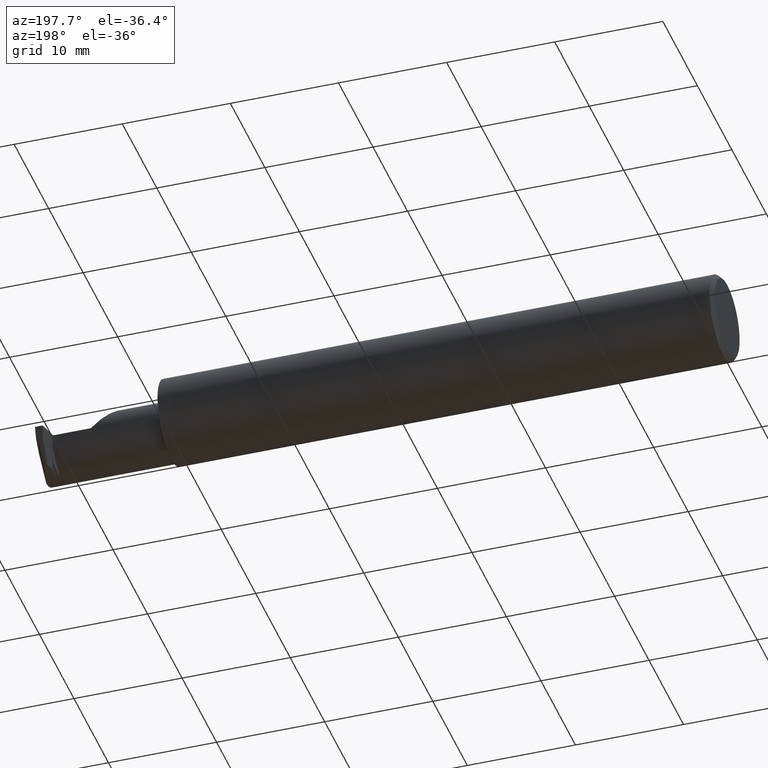
[diagram: clean part render]
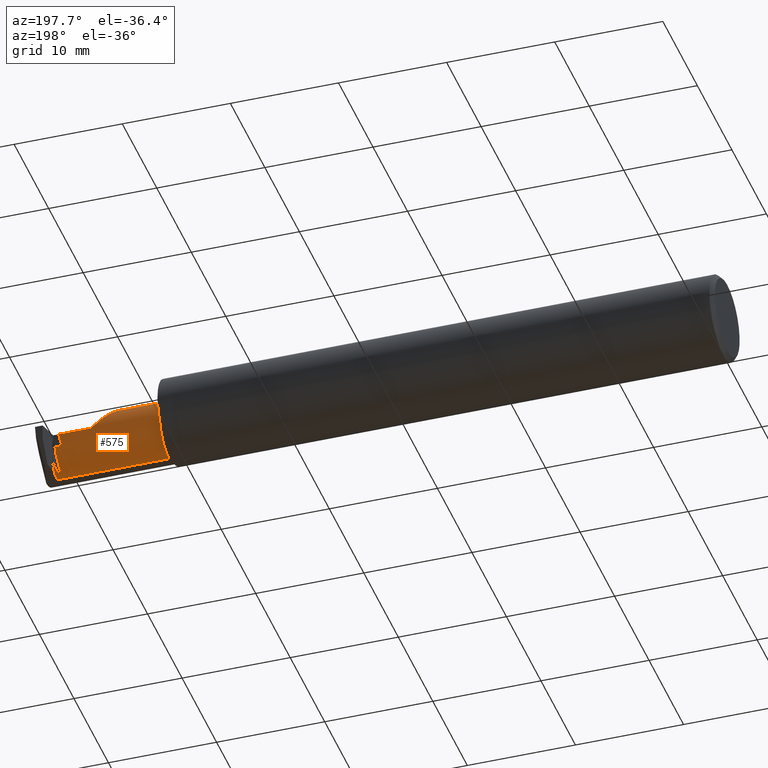
[diagram: same view with one face highlighted and labeled with its STEP entity id]
A machine part, auxiliary view. The second image highlights one B-rep face of the part: STEP entity #575.
In plain terms, the highlighted cylindrical surface (edge-blend (fillet) strip) has radius 2.794 mm, axis along (-1, -0, -0).
Its self-contained STEP definition (entity closure, byte-faithful):
#22 = EDGE_CURVE ( 'NONE', #80, #72, #375, .T. ) ;
#34 = VERTEX_POINT ( 'NONE', #376 ) ;
#40 = CARTESIAN_POINT ( 'NONE',  ( 2.024999999999999911, 0.05590000000000001218, -3.918740332231607202E-17 ) ) ;
#45 = CARTESIAN_POINT ( 'NONE',  ( 2.416931239432511092, 0.05590000000000005381, 0.000000000000000000 ) ) ;
#47 = EDGE_CURVE ( 'NONE', #844, #72, #321, .T. ) ;
#49 = CARTESIAN_POINT ( 'NONE',  ( 2.443435339008330320, -0.03363394074619024954, -0.1080793246584172140 ) ) ;
#65 = CARTESIAN_POINT ( 'NONE',  ( 2.447935725133934870, 0.03387289330929962872, -0.06603612680034005866 ) ) ;
#72 = VERTEX_POINT ( 'NONE', #312 ) ;
#78 = DIRECTION ( 'NONE',  ( 0.000000000000000000, -8.537024980200821818E-16, -1.000000000000000000 ) ) ;
#79 = DIRECTION ( 'NONE',  ( -1.000000000000000000, -0.000000000000000000, -0.000000000000000000 ) ) ;
#80 = VERTEX_POINT ( 'NONE', #600 ) ;
#83 = VECTOR ( 'NONE', #195, 39.37007874015748143 ) ;
#86 = VECTOR ( 'NONE', #79, 39.37007874015748143 ) ;
#90 = VECTOR ( 'NONE', #794, 39.37007874015748143 ) ;
#92 = CARTESIAN_POINT ( 'NONE',  ( 2.235563491861040308, 0.05590000000000019259, 0.06443650813895937524 ) ) ;
#118 = VERTEX_POINT ( 'NONE', #668 ) ;
#126 = VERTEX_POINT ( 'NONE', #520 ) ;
#130 = LINE ( 'NONE', #919, #86 ) ;
#132 =( BOUNDED_CURVE ( )  B_SPLINE_CURVE ( 3, ( #790, #92, #868, #366 ),
 .UNSPECIFIED., .F., .F. ) 
 B_SPLINE_CURVE_WITH_KNOTS ( ( 4, 4 ),
 ( 4.712388980384687009, 6.283185307179586232 ),
 .UNSPECIFIED. ) 
 CURVE ( )  GEOMETRIC_REPRESENTATION_ITEM ( )  RATIONAL_B_SPLINE_CURVE ( ( 1.000000000000000000, 0.8047378541243643824, 0.8047378541243643824, 1.000000000000000000 ) ) 
 REPRESENTATION_ITEM ( '' )  );
#136 = CARTESIAN_POINT ( 'NONE',  ( 2.450468519194640482, 0.01720710617663754466, -0.08823817868278979737 ) ) ;
#142 = CARTESIAN_POINT ( 'NONE',  ( 2.453019872896905262, 0.01270421248208411513, -0.09423690401342238454 ) ) ;
#165 = CARTESIAN_POINT ( 'NONE',  ( 2.049999999999999822, -0.05409999999999997450, -0.1100000000000000006 ) ) ;
#173 = CARTESIAN_POINT ( 'NONE',  ( 2.413720460968152626, 0.05589999999999999830, -0.01528912821151733568 ) ) ;
#176 = DIRECTION ( 'NONE',  ( 1.000000000000000000, 0.000000000000000000, 0.000000000000000000 ) ) ;
#187 = CIRCLE ( 'NONE', #678, 0.1100000000000000006 ) ;
#195 = DIRECTION ( 'NONE',  ( -1.000000000000000000, -0.000000000000000000, -0.000000000000000000 ) ) ;
#231 = LINE ( 'NONE', #507, #90 ) ;
#232 = EDGE_CURVE ( 'NONE', #676, #654, #832, .T. ) ;
#255 = CARTESIAN_POINT ( 'NONE',  ( 2.410578223941060916, 0.05275776297290870470, -0.03025187488229246977 ) ) ;
#257 = VECTOR ( 'NONE', #176, 39.37007874015748143 ) ;
#291 = EDGE_CURVE ( 'NONE', #771, #80, #130, .T. ) ;
#292 = DIRECTION ( 'NONE',  ( -1.000000000000000000, -0.000000000000000000, -0.000000000000000000 ) ) ;
#294 = EDGE_LOOP ( 'NONE', ( #797, #626, #718, #744, #730, #451, #920, #546, #877, #536, #461 ) ) ;
#312 = CARTESIAN_POINT ( 'NONE',  ( 2.416931239432511092, 0.05590000000000005381, 0.000000000000000000 ) ) ;
#318 = CARTESIAN_POINT ( 'NONE',  ( 2.024999999999999911, -0.05409999999999999531, 0.000000000000000000 ) ) ;
#321 = LINE ( 'NONE', #40, #257 ) ;
#334 = LINE ( 'NONE', #913, #83 ) ;
#366 = CARTESIAN_POINT ( 'NONE',  ( 2.189999999999999947, -0.05409999999999999531, 0.1100000000000000006 ) ) ;
#375 =( BOUNDED_CURVE ( )  B_SPLINE_CURVE ( 3, ( #455, #255, #173, #45 ),
 .UNSPECIFIED., .F., .T. ) 
 B_SPLINE_CURVE_WITH_KNOTS ( ( 4, 4 ),
 ( 1.156804228221842479, 1.570796326794896780 ),
 .UNSPECIFIED. ) 
 CURVE ( )  GEOMETRIC_REPRESENTATION_ITEM ( )  RATIONAL_B_SPLINE_CURVE ( ( 1.000000000000000000, 0.9857684695413673204, 0.9857684695413673204, 1.000000000000000000 ) ) 
 REPRESENTATION_ITEM ( '' )  );
#376 = CARTESIAN_POINT ( 'NONE',  ( 2.049999999999999822, -0.05409999999999999531, 0.1100000000000000006 ) ) ;
#399 = CARTESIAN_POINT ( 'NONE',  ( 2.457659549259122667, -0.05410000000000000225, -0.1100000000000000006 ) ) ;
#430 = LINE ( 'NONE', #583, #649 ) ;
#434 = AXIS2_PLACEMENT_3D ( 'NONE', #664, #872, #513 ) ;
#436 = CARTESIAN_POINT ( 'NONE',  ( 2.433435339008330534, -0.05409999999999999531, 0.000000000000000000 ) ) ;
#451 = ORIENTED_EDGE ( 'NONE', *, *, #47, .T. ) ;
#455 = CARTESIAN_POINT ( 'NONE',  ( 2.407638684877114965, 0.04660744544460398986, -0.04424941165735551268 ) ) ;
#456 = VERTEX_POINT ( 'NONE', #599 ) ;
#461 = ORIENTED_EDGE ( 'NONE', *, *, #576, .F. ) ;
#466 = CARTESIAN_POINT ( 'NONE',  ( 2.456506316694652803, -0.01883816676083866978, -0.1100000000000000283 ) ) ;
#500 = EDGE_CURVE ( 'NONE', #838, #34, #723, .T. ) ;
#507 = CARTESIAN_POINT ( 'NONE',  ( 2.024999999999999911, -0.03363394074619024954, -0.1080793246584172140 ) ) ;
#513 = DIRECTION ( 'NONE',  ( 0.000000000000000000, 0.000000000000000000, -1.000000000000000000 ) ) ;
#520 = CARTESIAN_POINT ( 'NONE',  ( 2.433435339008330534, -0.03363394074619022178, -0.1080793246584171724 ) ) ;
#525 = CYLINDRICAL_SURFACE ( 'NONE', #642, 0.1100000000000000006 ) ;
#536 = ORIENTED_EDGE ( 'NONE', *, *, #823, .T. ) ;
#546 = ORIENTED_EDGE ( 'NONE', *, *, #291, .F. ) ;
#561 = CARTESIAN_POINT ( 'NONE',  ( 2.447935725133934870, 0.03387289330929962872, -0.06603612680034005866 ) ) ;
#575 = ADVANCED_FACE ( 'NONE', ( #605 ), #525, .T. ) ;
#576 = EDGE_CURVE ( 'NONE', #654, #118, #892, .T. ) ;
#583 = CARTESIAN_POINT ( 'NONE',  ( 2.024999999999999911, -0.05409999999999997450, -0.1100000000000000006 ) ) ;
#599 = CARTESIAN_POINT ( 'NONE',  ( 2.189999999999999947, -0.05409999999999999531, 0.1100000000000000006 ) ) ;
#600 = CARTESIAN_POINT ( 'NONE',  ( 2.407638684877114965, 0.04660744544460398986, -0.04424941165735551268 ) ) ;
#605 = FACE_OUTER_BOUND ( 'NONE', #294, .T. ) ;
#622 = EDGE_CURVE ( 'NONE', #456, #34, #334, .T. ) ;
#626 = ORIENTED_EDGE ( 'NONE', *, *, #810, .T. ) ;
#642 = AXIS2_PLACEMENT_3D ( 'NONE', #318, #887, #904 ) ;
#649 = VECTOR ( 'NONE', #727, 39.37007874015748143 ) ;
#654 = VERTEX_POINT ( 'NONE', #896 ) ;
#664 = CARTESIAN_POINT ( 'NONE',  ( 2.049999999999999822, -0.05409999999999999531, 0.000000000000000000 ) ) ;
#668 = CARTESIAN_POINT ( 'NONE',  ( 2.443435339008330320, -0.03363394074619024954, -0.1080793246584172140 ) ) ;
#670 = CARTESIAN_POINT ( 'NONE',  ( 2.300000000000000266, 0.05590000000000006075, -3.918740332231607202E-17 ) ) ;
#676 = VERTEX_POINT ( 'NONE', #399 ) ;
#678 = AXIS2_PLACEMENT_3D ( 'NONE', #436, #292, #78 ) ;
#697 = CARTESIAN_POINT ( 'NONE',  ( 2.448897566187477892, -0.006357552722327694875, -0.1029142278622391521 ) ) ;
#718 = ORIENTED_EDGE ( 'NONE', *, *, #500, .T. ) ;
#723 = CIRCLE ( 'NONE', #434, 0.1100000000000000006 ) ;
#727 = DIRECTION ( 'NONE',  ( -1.000000000000000000, -0.000000000000000000, -0.000000000000000000 ) ) ;
#730 = ORIENTED_EDGE ( 'NONE', *, *, #817, .F. ) ;
#744 = ORIENTED_EDGE ( 'NONE', *, *, #622, .F. ) ;
#771 = VERTEX_POINT ( 'NONE', #862 ) ;
#773 = CARTESIAN_POINT ( 'NONE',  ( 2.457659549259122667, -0.05410000000000000225, -0.1100000000000000006 ) ) ;
#786 = EDGE_CURVE ( 'NONE', #771, #126, #187, .T. ) ;
#790 = CARTESIAN_POINT ( 'NONE',  ( 2.300000000000000266, 0.05590000000000006075, -3.918740332231607202E-17 ) ) ;
#794 = DIRECTION ( 'NONE',  ( 1.000000000000000000, 0.000000000000000000, 0.000000000000000000 ) ) ;
#797 = ORIENTED_EDGE ( 'NONE', *, *, #232, .F. ) ;
#810 = EDGE_CURVE ( 'NONE', #676, #838, #430, .T. ) ;
#817 = EDGE_CURVE ( 'NONE', #844, #456, #132, .T. ) ;
#823 = EDGE_CURVE ( 'NONE', #126, #118, #231, .T. ) ;
#832 =( BOUNDED_CURVE ( )  B_SPLINE_CURVE ( 3, ( #773, #466, #142, #65 ),
 .UNSPECIFIED., .F., .F. ) 
 B_SPLINE_CURVE_WITH_KNOTS ( ( 4, 4 ),
 ( 3.348588702876317935, 4.275473325823736737 ),
 .UNSPECIFIED. ) 
 CURVE ( )  GEOMETRIC_REPRESENTATION_ITEM ( )  RATIONAL_B_SPLINE_CURVE ( ( 1.000000000000000000, 0.9296793226638442320, 0.9296793226638442320, 1.000000000000000000 ) ) 
 REPRESENTATION_ITEM ( '' )  );
#838 = VERTEX_POINT ( 'NONE', #165 ) ;
#844 = VERTEX_POINT ( 'NONE', #670 ) ;
#862 = CARTESIAN_POINT ( 'NONE',  ( 2.433435339008330534, 0.04660744544460401068, -0.04424941165735549187 ) ) ;
#868 = CARTESIAN_POINT ( 'NONE',  ( 2.189999999999999947, 0.01033650813895969217, 0.1100000000000000283 ) ) ;
#872 = DIRECTION ( 'NONE',  ( 1.000000000000000000, 0.000000000000000000, 0.000000000000000000 ) ) ;
#877 = ORIENTED_EDGE ( 'NONE', *, *, #786, .T. ) ;
#887 = DIRECTION ( 'NONE',  ( -1.000000000000000000, -0.000000000000000000, -0.000000000000000000 ) ) ;
#892 =( BOUNDED_CURVE ( )  B_SPLINE_CURVE ( 3, ( #561, #136, #697, #49 ),
 .UNSPECIFIED., .F., .T. ) 
 B_SPLINE_CURVE_WITH_KNOTS ( ( 4, 4 ),
 ( 2.912839731440104885, 3.652578767003593185 ),
 .UNSPECIFIED. ) 
 CURVE ( )  GEOMETRIC_REPRESENTATION_ITEM ( )  RATIONAL_B_SPLINE_CURVE ( ( 1.000000000000000000, 0.9549163480352654831, 0.9549163480352654831, 1.000000000000000000 ) ) 
 REPRESENTATION_ITEM ( '' )  );
#896 = CARTESIAN_POINT ( 'NONE',  ( 2.447935725133934870, 0.03387289330929962872, -0.06603612680034005866 ) ) ;
#904 = DIRECTION ( 'NONE',  ( 0.000000000000000000, 0.000000000000000000, 1.000000000000000000 ) ) ;
#913 = CARTESIAN_POINT ( 'NONE',  ( 2.024999999999999911, -0.05409999999999999531, 0.1100000000000000006 ) ) ;
#919 = CARTESIAN_POINT ( 'NONE',  ( 2.024999999999999911, 0.04660744544460368455, -0.04424941165735624127 ) ) ;
#920 = ORIENTED_EDGE ( 'NONE', *, *, #22, .F. ) ;